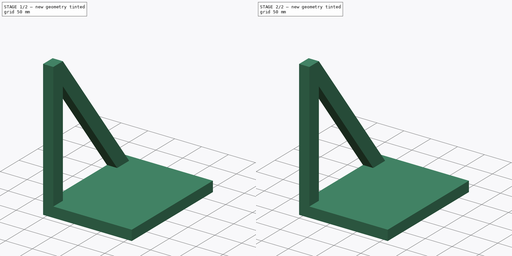
[diagram: build sequence overview — one tinted view per stage of 2, left to right]
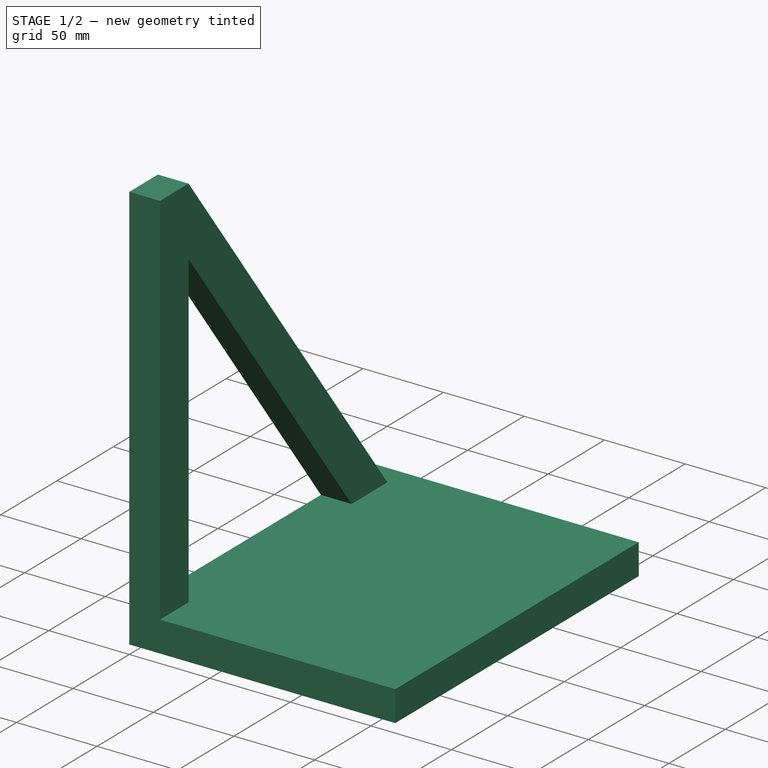
[diagram: stage 1 of 2 — iso view after this stage's code; geometry added in this stage tinted green]
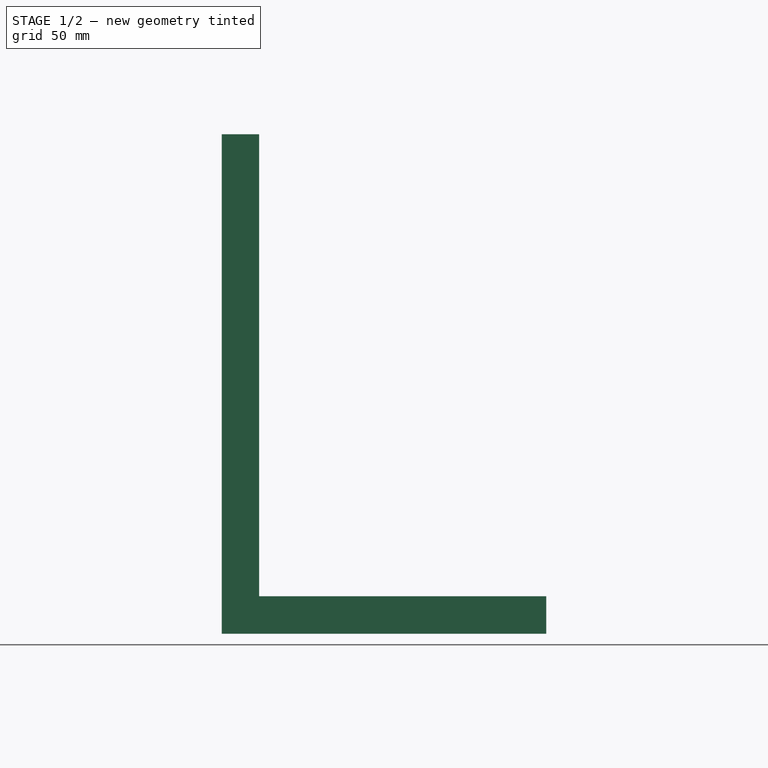
[diagram: stage 1 of 2 — front view after this stage's code; geometry added in this stage tinted green]
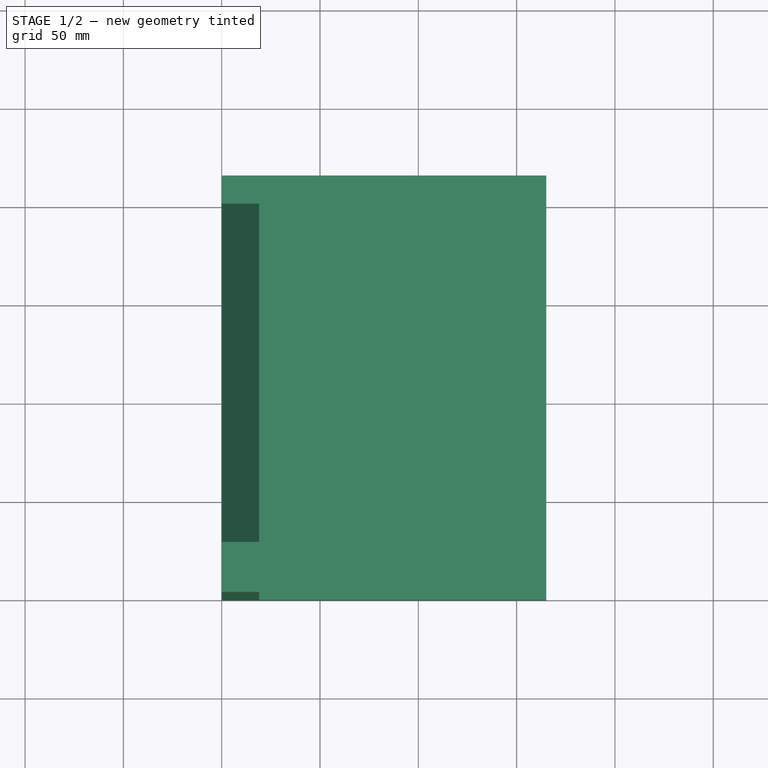
[diagram: stage 1 of 2 — top view after this stage's code; geometry added in this stage tinted green]
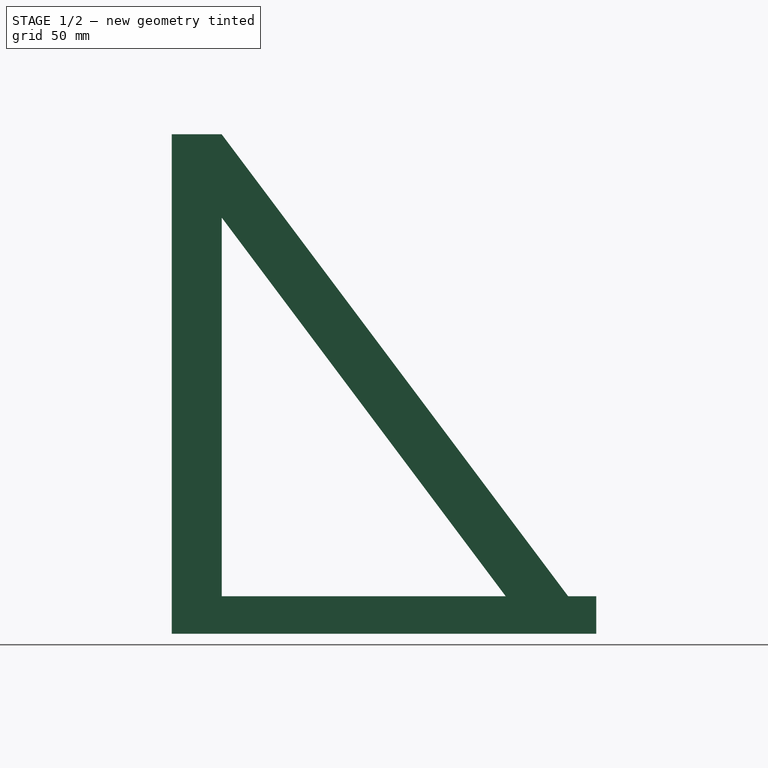
[diagram: stage 1 of 2 — right view after this stage's code; geometry added in this stage tinted green]
FCSTD DOCUMENT  (FreeCAD 1.0R39319 (Git))
Label: Stand-idea1
License: All rights reserved
objects: Sketcher::SketchObject×4, PartDesign::Body×4, PartDesign::Pad×2, PartDesign::FeatureBase×1, App::Part×1
note: 20 computed .brp shape members not serialized (recipe doc carries the construction recipe); baked Part::Feature solids carry a one-line shape summary decoded from their .brp

FEATURE [Sketcher::SketchObject] Sketch
  ArcFitTolerance = 1e-06
  AttachmentSupport = -> [YZ_Plane]
  FullyConstrained = false
  MakeInternals = false
  MapMode = 5
  Placement = pos=(0,0,0) rot=(0.57735,0.57735,0.57735;2.0944rad)
  sketch-geometry (11):
    g0: LineSegment StartX=0 StartY=0 StartZ=0 EndX=25.4 EndY=0 EndZ=0
    g1: LineSegment StartX=25.4 StartY=0 StartZ=0 EndX=25.4 EndY=254 EndZ=0
    g2: LineSegment StartX=25.4 StartY=254 StartZ=0 EndX=0 EndY=254 EndZ=0
    g3: LineSegment StartX=0 StartY=254 StartZ=0 EndX=0 EndY=0 EndZ=0
    g4: GeomPoint X=215.9 Y=-1.41e-14 Z=0
    g5: LineSegment StartX=25.4 StartY=254 StartZ=0 EndX=215.9 EndY=0 EndZ=0
    g6: LineSegment StartX=184.15 StartY=0 StartZ=0 EndX=25.4 EndY=211.667 EndZ=0
    g7: LineSegment [constr] StartX=110.812 StartY=140.118 StartZ=0 EndX=90.4917 EndY=124.878 EndZ=0
    g8: LineSegment StartX=184.15 StartY=0 StartZ=0 EndX=215.9 EndY=-1.41e-14 EndZ=0
    g9: LineSegment StartX=25.4 StartY=254 StartZ=0 EndX=25.4 EndY=211.667 EndZ=0
    g10: LineSegment [constr] StartX=0 StartY=215.9 StartZ=0 EndX=25.4 EndY=215.9 EndZ=0
  constraints (30):
    c: Coincident(g0,g1)
    c: Coincident(g1,g2)
    c: Coincident(g2,g3)
    c: Coincident(g3,g0)
    c: Horizontal(g0)
    c: Horizontal(g2)
    c: Vertical(g1)
    c: Vertical(g3)
    c: Coincident(g0,g-1)
    c: DistanceY(g1,g1) = 254
    c: DistanceX(g2,g2) = 25.4
    c: PointOnObject(g4,g-1)
    c: DistanceX(g0,g4) = 215.9
    c: Coincident(g5,g1)
    c: Coincident(g5,g4)
    c: PointOnObject(g6,g-1)
    c: PointOnObject(g6,g1)
    c: PointOnObject(g7,g5)
    c: PointOnObject(g7,g6)
    c: Perpendicular(g7,g5)
    c: Perpendicular(g7,g6)
    c: Distance(g7,g7) = 25.4
    c: Coincident(g8,g6)
    c: Coincident(g8,g4)
    c: Coincident(g9,g1)
    c: Coincident(g9,g6)
    c: PointOnObject(g10,g3)
    c: PointOnObject(g10,g1)
    c: Horizontal(g10)
    c: Distance(g0,g10) = 215.9
FEATURE [PartDesign::Pad] Pad
  Direction = (1,0,0)
  Length = 19.05
  Length2 = 10
  Placement = pos=(0,0,0) rot=(1,1,1;2.0944rad)
  Profile = -> Sketch
  ReferenceAxis = -> Sketch [N_Axis]
  Suppressed = false
  Type = 0
FEATURE [PartDesign::Body] Body001
  AllowCompound = false
  Group = -> [Clone]
  Origin = -> Origin001
  Placement = pos=(171.45,0,0) rot=(0,0,1;0rad)
  Tip = -> Clone
FEATURE [Sketcher::SketchObject] Sketch002
  ArcFitTolerance = 1e-06
  AttachmentSupport = -> [XY_Plane002]
  FullyConstrained = true
  MakeInternals = false
  MapMode = 5
  sketch-geometry (4):
    g0: LineSegment StartX=0 StartY=0 StartZ=0 EndX=165.1 EndY=0 EndZ=0
    g1: LineSegment StartX=165.1 StartY=0 StartZ=0 EndX=165.1 EndY=215.9 EndZ=0
    g2: LineSegment StartX=165.1 StartY=215.9 StartZ=0 EndX=0 EndY=215.9 EndZ=0
    g3: LineSegment StartX=0 StartY=215.9 StartZ=0 EndX=0 EndY=0 EndZ=0
  constraints (11):
    c: Coincident(g0,g1)
    c: Coincident(g1,g2)
    c: Coincident(g2,g3)
    c: Coincident(g3,g0)
    c: Horizontal(g0)
    c: Horizontal(g2)
    c: Vertical(g1)
    c: Vertical(g3)
    c: Distance(g1,g3) = 165.1
    c: Distance(g0,g2) = 215.9
    c: Coincident(g0,g-1)
FEATURE [PartDesign::Pad] Pad001
  Direction = (0,0,1)
  Length = 19.05
  Length2 = 10
  Profile = -> Sketch002
  ReferenceAxis = -> Sketch002 [N_Axis]
  Suppressed = false
  Type = 0
FEATURE [PartDesign::Body] Body002
  AllowCompound = false
  Group = -> [Sketch002,Pad001]
  Origin = -> Origin002
  Placement = pos=(12.7,-25.4,215.9) rot=(0,0,1;0rad)
  Tip = -> Pad001
FEATURE [App::Part] Part
  Group = -> [Body,Body002,Body001]
  Origin = -> Origin003
FEATURE [Sketcher::SketchObject] Sketch003
  ArcFitTolerance = 1e-06
  AttachmentSupport = -> [YZ_Plane004]
  FullyConstrained = false
  MakeInternals = false
  MapMode = 5
  Placement = pos=(0,0,0) rot=(0.57735,0.57735,0.57735;2.0944rad)
  sketch-geometry (10):
    g0: LineSegment StartX=0 StartY=0 StartZ=0 EndX=127 EndY=0 EndZ=0
    g1: LineSegment StartX=127 StartY=0 StartZ=0 EndX=127 EndY=152.4 EndZ=0
    g2: LineSegment StartX=127 StartY=152.4 StartZ=0 EndX=0 EndY=152.4 EndZ=0
    g3: LineSegment StartX=0 StartY=152.4 StartZ=0 EndX=0 EndY=0 EndZ=0
    g4: LineSegment StartX=106.866 StartY=25.1498 StartZ=0 EndX=106.866 EndY=126.75 EndZ=0
    g5: LineSegment StartX=106.866 StartY=126.75 StartZ=0 EndX=87.8157 EndY=126.75 EndZ=0
    g6: LineSegment StartX=87.8157 StartY=126.75 StartZ=0 EndX=87.8157 EndY=25.1498 EndZ=0
    g7: LineSegment StartX=87.8157 StartY=25.1498 StartZ=0 EndX=106.866 EndY=25.1498 EndZ=0
    g8: GeomPoint X=106.866 Y=75.9498 Z=0
    g9: GeomPoint X=127 Y=76.2 Z=0
  constraints (23):
    c: Coincident(g0,g1)
    c: Coincident(g1,g2)
    c: Coincident(g2,g3)
    c: Coincident(g3,g0)
    c: Horizontal(g0)
    c: Horizontal(g2)
    c: Vertical(g1)
    c: Vertical(g3)
    c: Coincident(g0,g-1)
    c: DistanceY(g3,g3) = 152.4
    c: DistanceX(g0,g0) = 127
    c: Coincident(g4,g5)
    c: Coincident(g5,g6)
    c: Coincident(g6,g7)
    c: Coincident(g7,g4)
    c: Vertical(g4)
    c: Vertical(g6)
    c: Horizontal(g5)
    c: Horizontal(g7)
    c: DistanceY(g4,g4) = 101.6
    c: DistanceX(g5,g5) = 19.05
    c: Symmetric(g4,g4,g8)
    c: Symmetric(g1,g1,g9)
FEATURE [PartDesign::Body] Body003
  AllowCompound = false
  Group = -> [Sketch003]
  Origin = -> Origin004
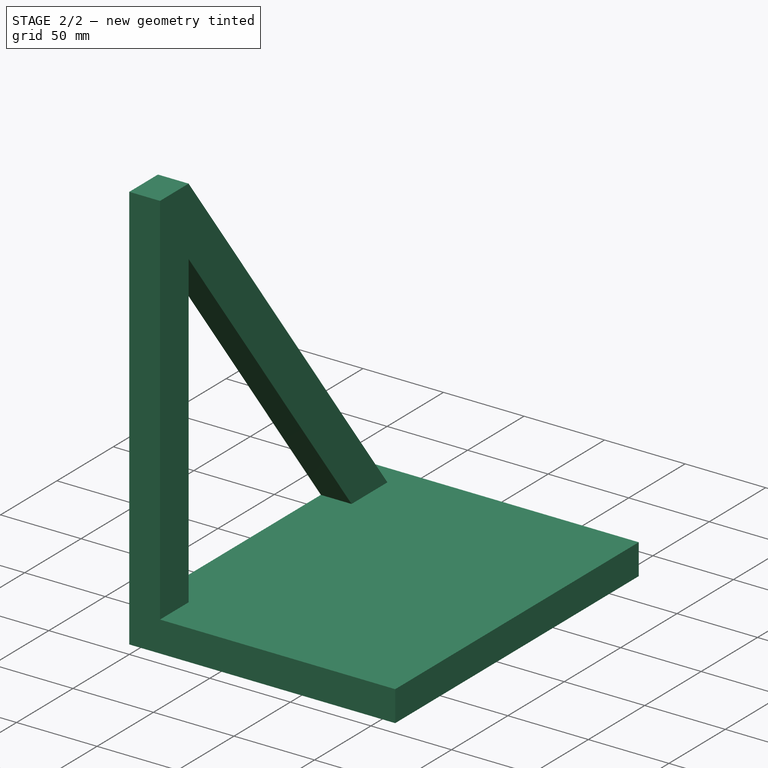
[diagram: stage 2 of 2 — iso view after this stage's code; geometry added in this stage tinted green]
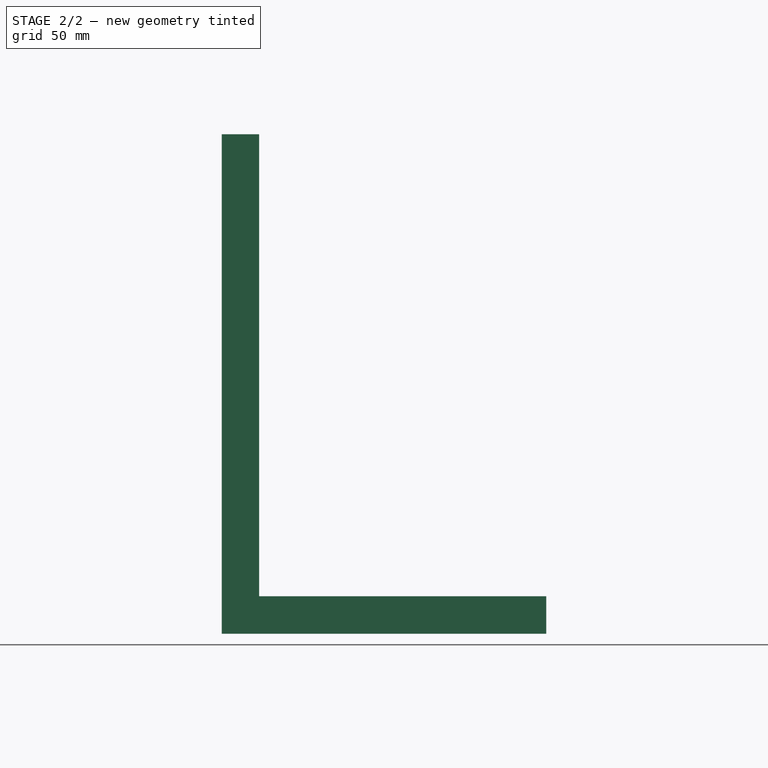
[diagram: stage 2 of 2 — front view after this stage's code; geometry added in this stage tinted green]
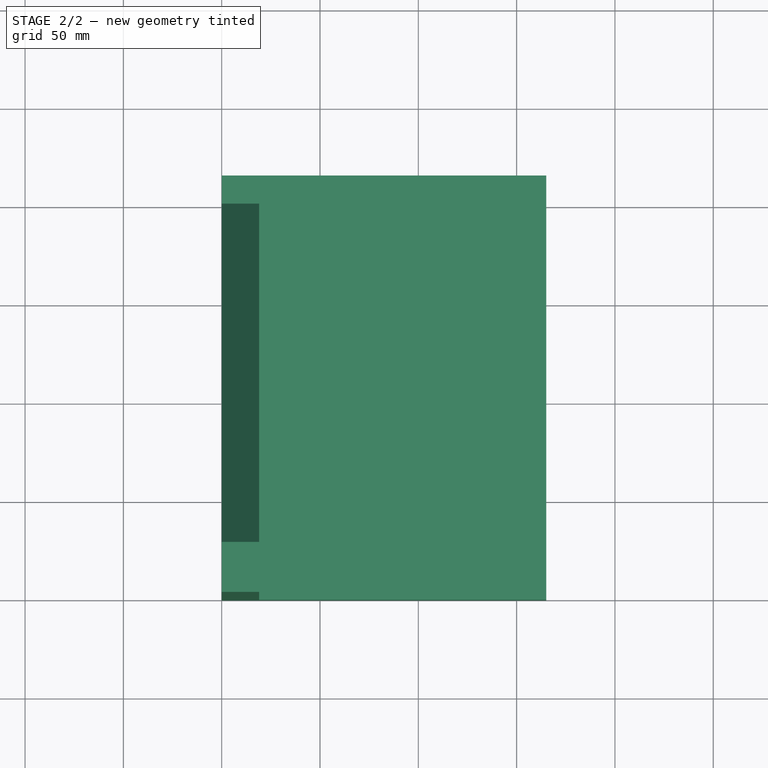
[diagram: stage 2 of 2 — top view after this stage's code; geometry added in this stage tinted green]
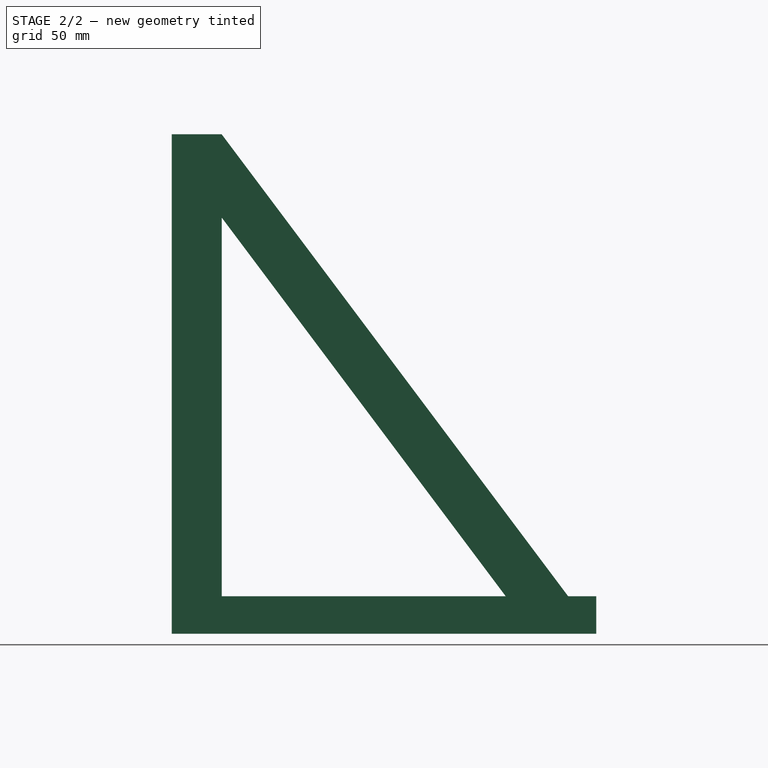
[diagram: stage 2 of 2 — right view after this stage's code; geometry added in this stage tinted green]
FEATURE [Sketcher::SketchObject] Sketch001
  ArcFitTolerance = 1e-06
  AttachmentSupport = -> [Pad]
  ExternalGeometry = -> [Pad]
  FullyConstrained = true
  MakeInternals = false
  MapMode = 5
  Placement = pos=(19.05,0,0) rot=(0.57735,0.57735,0.57735;2.0944rad)
  sketch-geometry (4):
    g0: LineSegment StartX=25.4 StartY=215.9 StartZ=0 EndX=25.4 EndY=234.95 EndZ=0
    g1: LineSegment StartX=25.4 StartY=234.95 StartZ=0 EndX=2.49e-14 EndY=234.95 EndZ=0
    g2: LineSegment StartX=2.49e-14 StartY=234.95 StartZ=0 EndX=2.49e-14 EndY=215.9 EndZ=0
    g3: LineSegment StartX=2.49e-14 StartY=215.9 StartZ=0 EndX=25.4 EndY=215.9 EndZ=0
  constraints (12):
    c: Coincident(g0,g1)
    c: Coincident(g1,g2)
    c: Coincident(g2,g3)
    c: Coincident(g3,g0)
    c: Vertical(g0)
    c: Vertical(g2)
    c: Horizontal(g1)
    c: Horizontal(g3)
    c: PointOnObject(g0,g-5)
    c: PointOnObject(g1,g-4)
    c: DistanceY(g1,g-4) = 19.05
    c: DistanceY(g2,g2) = 19.05
FEATURE [PartDesign::Body] Body
  AllowCompound = false
  Group = -> [Sketch,Pad,Sketch001]
  Origin = -> Origin
  Tip = -> Pad
FEATURE [PartDesign::FeatureBase] Clone
  BaseFeature = -> Body
  Suppressed = false
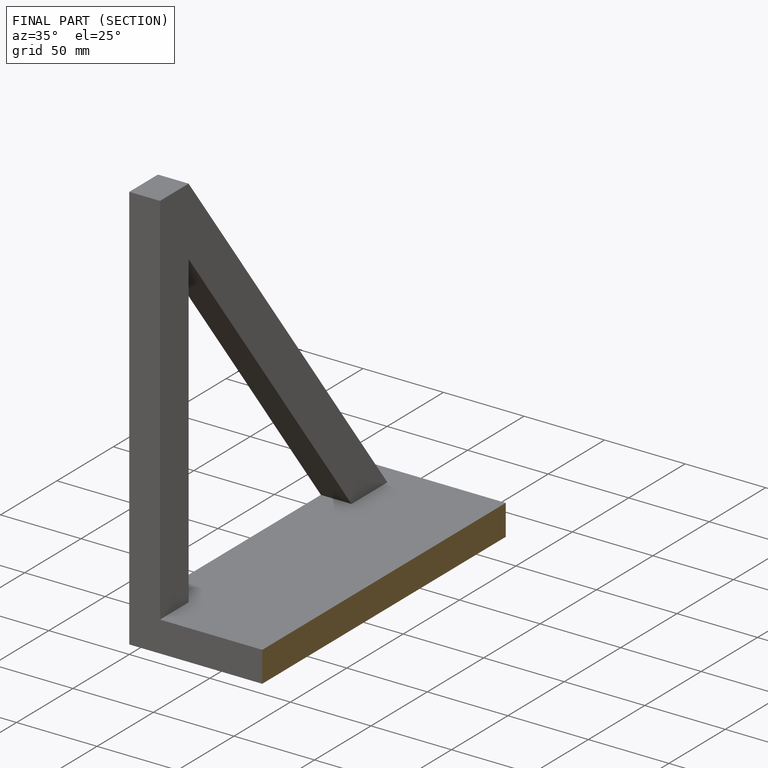
[diagram: finished part — half-section view (interior)]
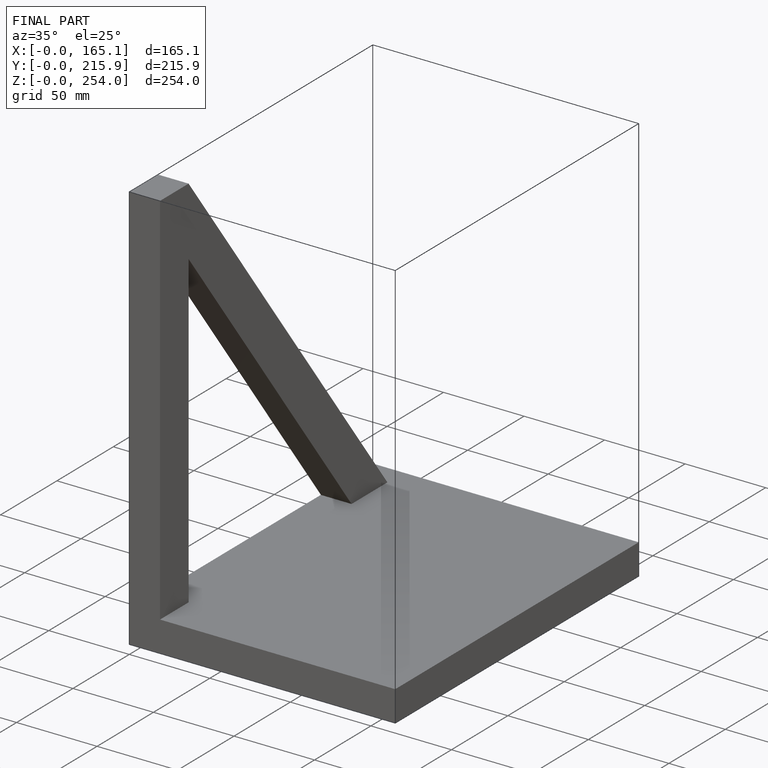
[diagram: finished part — iso view with bounding-box wireframe]
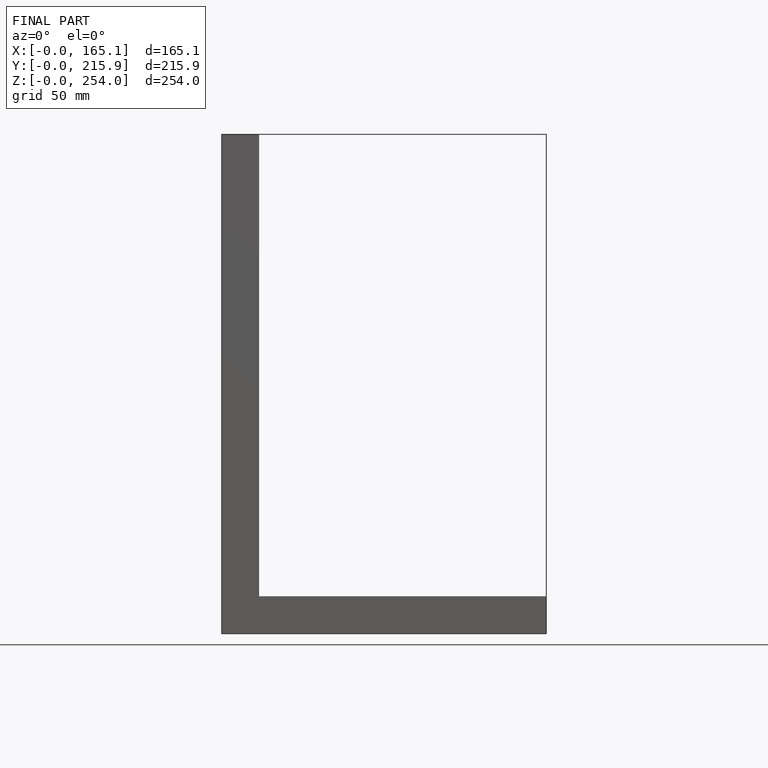
[diagram: finished part — front view with bounding-box wireframe]
